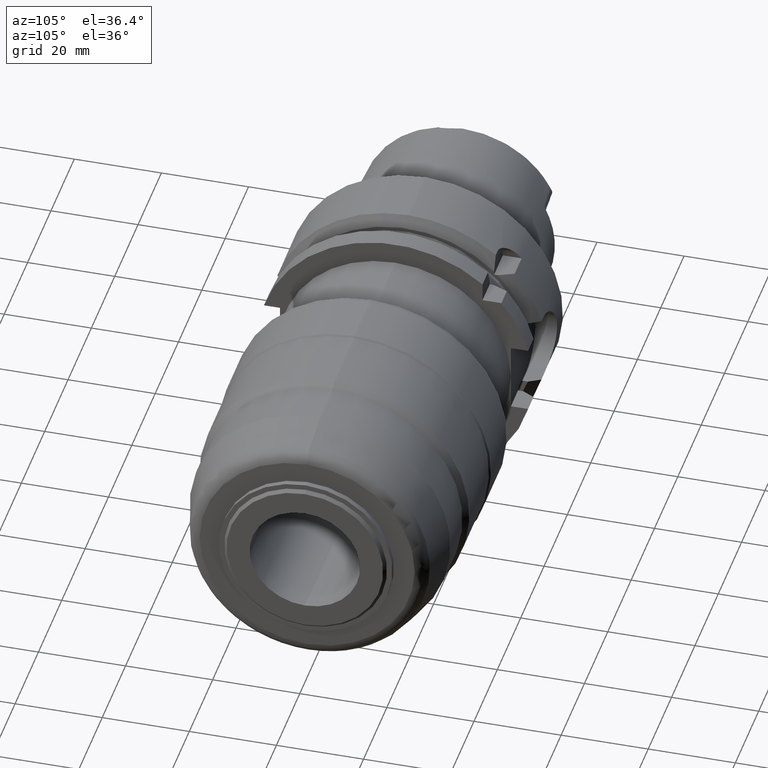
[diagram: clean part render]
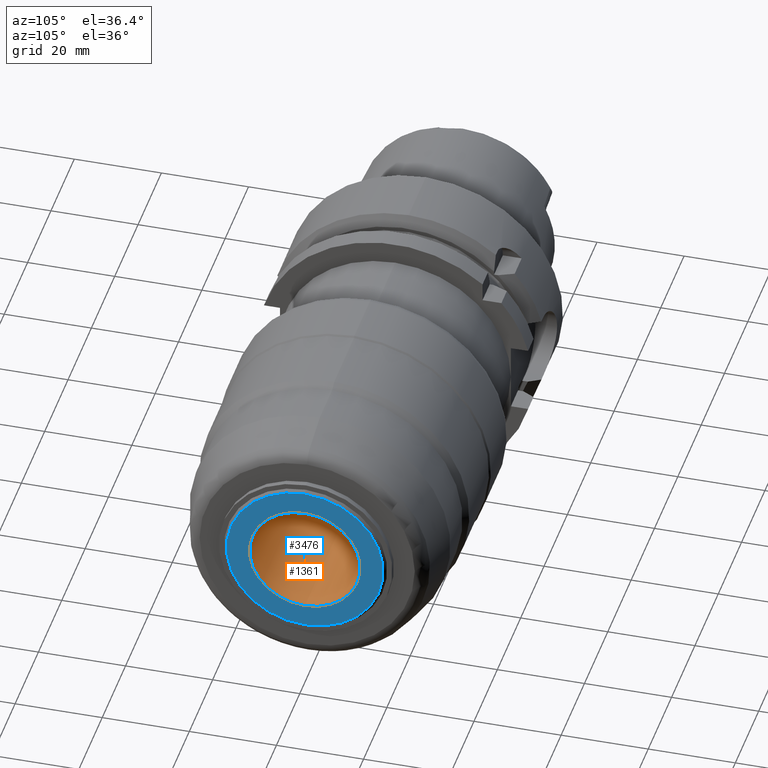
[diagram: same view with the hole feature highlighted: cylindrical wall and planar end face, labeled with their STEP entity ids]
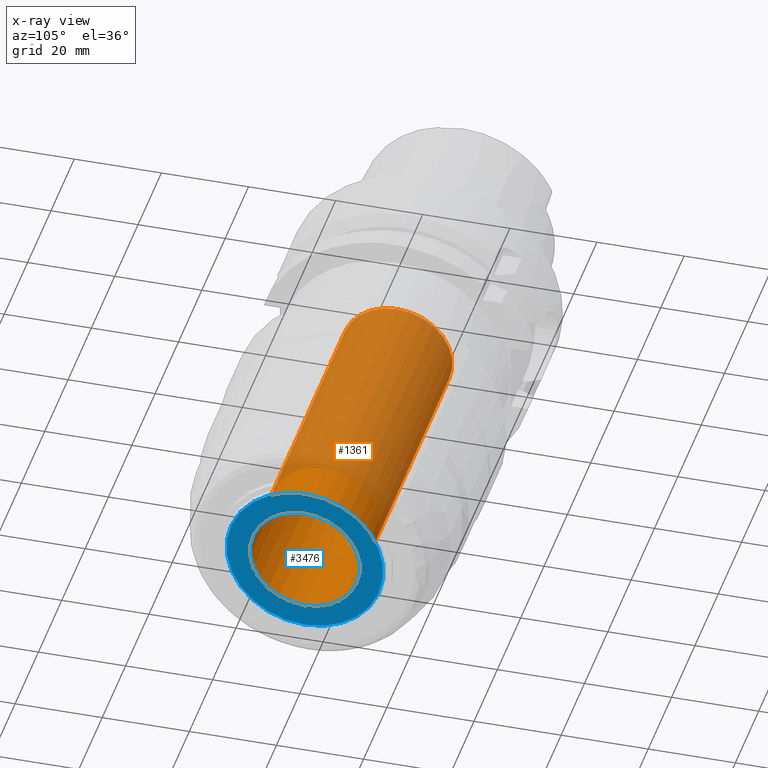
[diagram: x-ray of the same camera — body ghosted, the hole faces saturated]
A machine part, auxiliary view. The highlighted faces form one hole feature of diameter 25.4 mm: the cylindrical wall (entity #1361, orange) and its adjacent planar end face (entity #3476, blue) — they share a circular edge in the B-rep.
The next image is the same camera in x-ray (body ghosted, the hole faces saturated) — the bore reads through the body.
Wall:
#434 = DIRECTION ( 'NONE',  ( 0.0000000000000000000, 0.0000000000000000000, -1.000000000000000000 ) ) ;
#719 = ORIENTED_EDGE ( 'NONE', *, *, #3253, .F. ) ;
#1078 = AXIS2_PLACEMENT_3D ( 'NONE', #3696, #1607, #1108 ) ;
#1108 = DIRECTION ( 'NONE',  ( 0.0000000000000000000, 0.0000000000000000000, -1.000000000000000000 ) ) ;
#1361 = ADVANCED_FACE ( 'NONE', ( #3580, #2898 ), #3620, .F. ) ;
#1385 = EDGE_LOOP ( 'NONE', ( #719 ) ) ;
#1419 = CARTESIAN_POINT ( 'NONE',  ( 56.59999999997918300, 0.0000000000000000000, -12.69999999999999900 ) ) ;
#1503 = CARTESIAN_POINT ( 'NONE',  ( 56.59999999997918300, 0.0000000000000000000, 0.0000000000000000000 ) ) ;
#1539 = DIRECTION ( 'NONE',  ( 1.000000000000000000, 0.0000000000000000000, 0.0000000000000000000 ) ) ;
#1540 = AXIS2_PLACEMENT_3D ( 'NONE', #1503, #1539, #2980 ) ;
#1551 = AXIS2_PLACEMENT_3D ( 'NONE', #3345, #2742, #434 ) ;
#1607 = DIRECTION ( 'NONE',  ( 1.000000000000000000, 0.0000000000000000000, 0.0000000000000000000 ) ) ;
#1691 = ORIENTED_EDGE ( 'NONE', *, *, #3560, .T. ) ;
#1853 = VERTEX_POINT ( 'NONE', #3141 ) ;
#2393 = CIRCLE ( 'NONE', #1540, 12.69999999999999900 ) ;
#2742 = DIRECTION ( 'NONE',  ( 1.000000000000000000, -0.0000000000000000000, -0.0000000000000000000 ) ) ;
#2898 = FACE_OUTER_BOUND ( 'NONE', #3215, .T. ) ;
#2980 = DIRECTION ( 'NONE',  ( 0.0000000000000000000, 0.0000000000000000000, -1.000000000000000000 ) ) ;
#3141 = CARTESIAN_POINT ( 'NONE',  ( 135.5999999999791900, 0.0000000000000000000, -12.69999999999999900 ) ) ;
#3215 = EDGE_LOOP ( 'NONE', ( #1691 ) ) ;
#3230 = VERTEX_POINT ( 'NONE', #1419 ) ;
#3253 = EDGE_CURVE ( 'NONE', #3230, #3230, #2393, .T. ) ;
#3264 = CIRCLE ( 'NONE', #1078, 12.69999999999999900 ) ;
#3345 = CARTESIAN_POINT ( 'NONE',  ( 56.59999999997918300, 0.0000000000000000000, 0.0000000000000000000 ) ) ;
#3560 = EDGE_CURVE ( 'NONE', #1853, #1853, #3264, .T. ) ;
#3580 = FACE_OUTER_BOUND ( 'NONE', #1385, .T. ) ;
#3620 = CYLINDRICAL_SURFACE ( 'NONE', #1551, 12.69999999999999900 ) ;
#3696 = CARTESIAN_POINT ( 'NONE',  ( 135.5999999999791900, 0.0000000000000000000, 0.0000000000000000000 ) ) ;
End face:
#269 = DIRECTION ( 'NONE',  ( -1.000000000000000000, -0.0000000000000000000, -0.0000000000000000000 ) ) ;
#272 = CARTESIAN_POINT ( 'NONE',  ( 135.5999999999791900, 0.0000000000000000000, 18.00000000003141300 ) ) ;
#334 = FACE_OUTER_BOUND ( 'NONE', #3575, .T. ) ;
#606 = ORIENTED_EDGE ( 'NONE', *, *, #3622, .F. ) ;
#956 = CIRCLE ( 'NONE', #1659, 18.00000000003141300 ) ;
#1054 = CARTESIAN_POINT ( 'NONE',  ( 135.5999999999791900, 18.00000000003141300, 0.0000000000000000000 ) ) ;
#1078 = AXIS2_PLACEMENT_3D ( 'NONE', #3696, #1607, #1108 ) ;
#1108 = DIRECTION ( 'NONE',  ( 0.0000000000000000000, 0.0000000000000000000, -1.000000000000000000 ) ) ;
#1390 = DIRECTION ( 'NONE',  ( 0.0000000000000000000, 0.0000000000000000000, 1.000000000000000000 ) ) ;
#1607 = DIRECTION ( 'NONE',  ( 1.000000000000000000, 0.0000000000000000000, 0.0000000000000000000 ) ) ;
#1651 = DIRECTION ( 'NONE',  ( -0.0000000000000000000, 0.0000000000000000000, 1.000000000000000000 ) ) ;
#1659 = AXIS2_PLACEMENT_3D ( 'NONE', #2548, #269, #1390 ) ;
#1853 = VERTEX_POINT ( 'NONE', #3141 ) ;
#1960 = AXIS2_PLACEMENT_3D ( 'NONE', #1054, #2772, #1651 ) ;
#2161 = ORIENTED_EDGE ( 'NONE', *, *, #3560, .F. ) ;
#2524 = PLANE ( 'NONE',  #1960 ) ;
#2548 = CARTESIAN_POINT ( 'NONE',  ( 135.5999999999791900, 0.0000000000000000000, 0.0000000000000000000 ) ) ;
#2772 = DIRECTION ( 'NONE',  ( -1.000000000000000000, 0.0000000000000000000, -0.0000000000000000000 ) ) ;
#2921 = EDGE_LOOP ( 'NONE', ( #2161 ) ) ;
#2956 = VERTEX_POINT ( 'NONE', #272 ) ;
#3071 = FACE_BOUND ( 'NONE', #2921, .T. ) ;
#3141 = CARTESIAN_POINT ( 'NONE',  ( 135.5999999999791900, 0.0000000000000000000, -12.69999999999999900 ) ) ;
#3264 = CIRCLE ( 'NONE', #1078, 12.69999999999999900 ) ;
#3476 = ADVANCED_FACE ( 'NONE', ( #3071, #334 ), #2524, .F. ) ;
#3560 = EDGE_CURVE ( 'NONE', #1853, #1853, #3264, .T. ) ;
#3575 = EDGE_LOOP ( 'NONE', ( #606 ) ) ;
#3622 = EDGE_CURVE ( 'NONE', #2956, #2956, #956, .T. ) ;
#3696 = CARTESIAN_POINT ( 'NONE',  ( 135.5999999999791900, 0.0000000000000000000, 0.0000000000000000000 ) ) ;